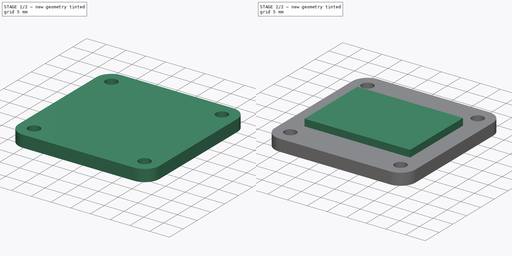
[diagram: build sequence overview — one tinted view per stage of 2, left to right]
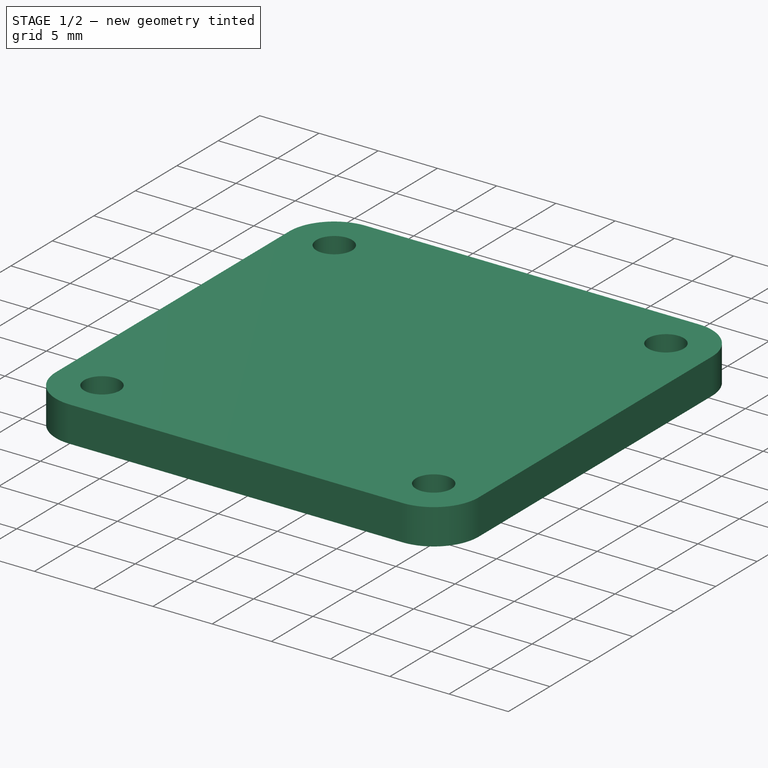
[diagram: stage 1 of 2 — iso view after this stage's code; geometry added in this stage tinted green]
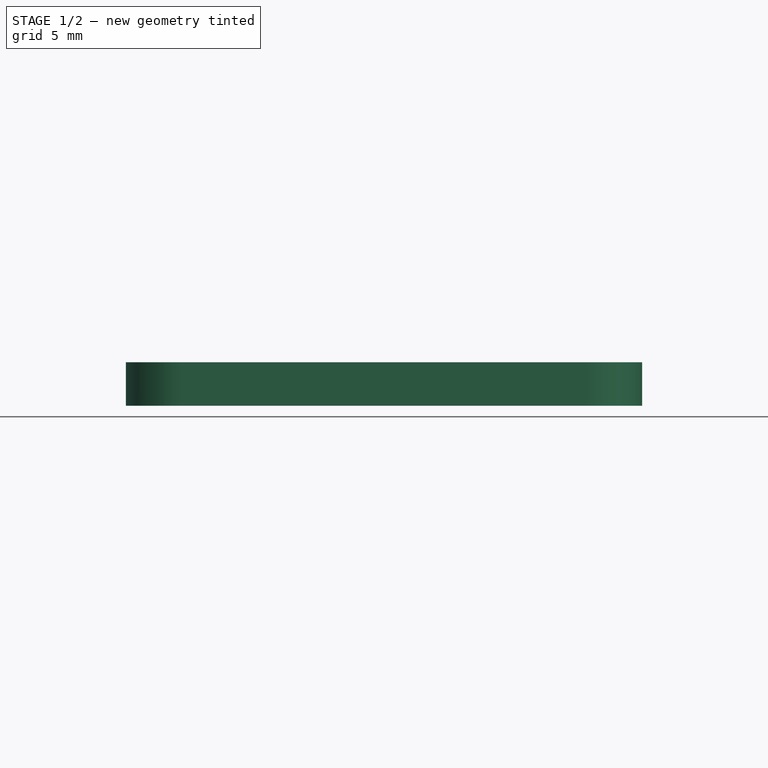
[diagram: stage 1 of 2 — front view after this stage's code; geometry added in this stage tinted green]
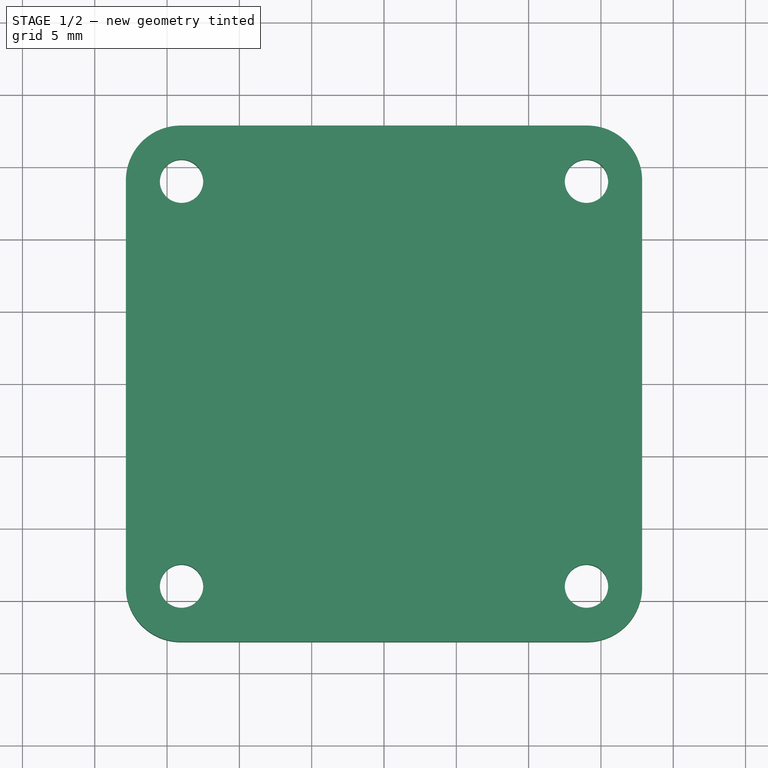
[diagram: stage 1 of 2 — top view after this stage's code; geometry added in this stage tinted green]
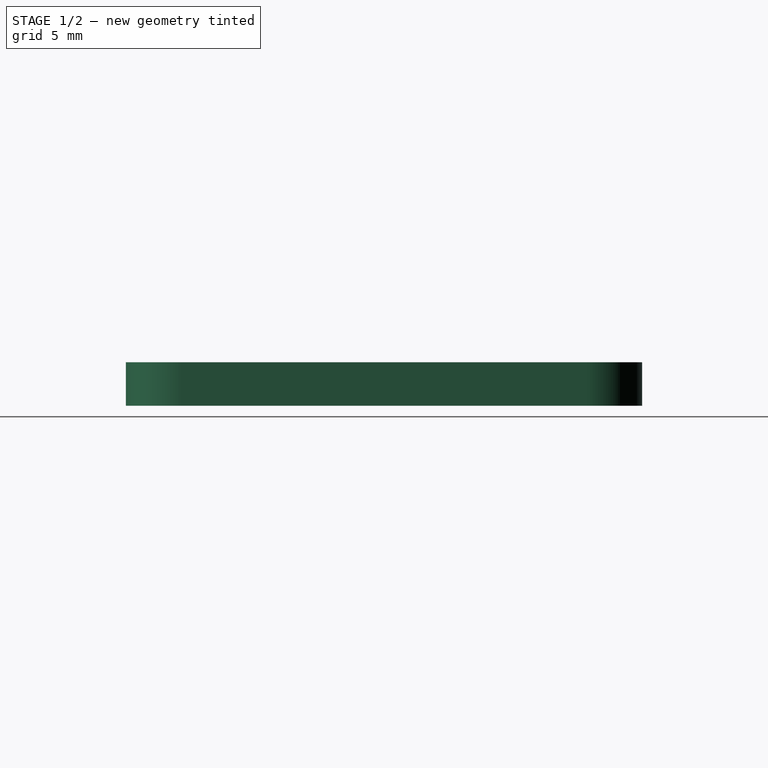
[diagram: stage 1 of 2 — right view after this stage's code; geometry added in this stage tinted green]
FCSTD DOCUMENT  (FreeCAD 0.16R5166 (Git))
Label: OLED
License: CreativeCommons Attribution-ShareAlike
LicenseURL: http://creativecommons.org/licenses/by-sa/4.0/
objects: Sketcher::SketchObject×2, PartDesign::Pad×2
note: 6 computed .brp shape members not serialized (recipe doc carries the construction recipe); baked Part::Feature solids carry a one-line shape summary decoded from their .brp

FEATURE [Sketcher::SketchObject] Sketch
  sketch-geometry (12):
    g0: LineSegment StartX=-14.05 StartY=17.85 StartZ=0 EndX=14.05 EndY=17.85 EndZ=0
    g1: LineSegment StartX=17.85 StartY=14.05 StartZ=0 EndX=17.85 EndY=-14.05 EndZ=0
    g2: LineSegment StartX=14.05 StartY=-17.85 StartZ=0 EndX=-14.05 EndY=-17.85 EndZ=0
    g3: LineSegment StartX=-17.85 StartY=-14.05 StartZ=0 EndX=-17.85 EndY=14.05 EndZ=0
    g4: Circle CenterX=-14 CenterY=14 CenterZ=0 NormalX=0 NormalY=0 NormalZ=1 Radius=1.5
    g5: Circle CenterX=-14 CenterY=-14 CenterZ=0 NormalX=0 NormalY=0 NormalZ=1 Radius=1.5
    g6: Circle CenterX=14 CenterY=-14 CenterZ=0 NormalX=0 NormalY=0 NormalZ=1 Radius=1.5
    g7: Circle CenterX=14 CenterY=14 CenterZ=0 NormalX=0 NormalY=0 NormalZ=1 Radius=1.5
    g8: ArcOfCircle CenterX=-14.05 CenterY=14.05 CenterZ=0 NormalX=0 NormalY=0 NormalZ=1 Radius=3.8 StartAngle=1.5708 EndAngle=3.14159
    g9: ArcOfCircle CenterX=14.05 CenterY=14.05 CenterZ=0 NormalX=0 NormalY=0 NormalZ=1 Radius=3.8 StartAngle=0 EndAngle=1.5708
    g10: ArcOfCircle CenterX=14.05 CenterY=-14.05 CenterZ=0 NormalX=0 NormalY=0 NormalZ=1 Radius=3.8 StartAngle=4.71239 EndAngle=6.28319
    g11: ArcOfCircle CenterX=-14.05 CenterY=-14.05 CenterZ=0 NormalX=0 NormalY=0 NormalZ=1 Radius=3.8 StartAngle=3.14159 EndAngle=4.71239
  constraints (29):
    c: Horizontal(g0)
    c: Horizontal(g2)
    c: Vertical(g1)
    c: Vertical(g3)
    c: Equal(g4,g7)
    c: Equal(g7,g5)
    c: Equal(g5,g6)
    c: Symmetric(g4,g7,g-2)
    c: Symmetric(g5,g7,g-1)
    c: Equal(g0,g1)
    c: Radius(g4) = 1.5
    c: Symmetric(g4,g6,g-1)
    c: Symmetric(g4,g5,g-1)
    c: DistanceX(g4,g7) = 28
    c: DistanceY(g4,g5) = -28
    c: Tangent(g3,g8) = 1.5708
    c: Tangent(g0,g8) = 1.5708
    c: Tangent(g0,g9) = 1.5708
    c: Tangent(g1,g9) = 1.5708
    c: Tangent(g1,g10) = 1.5708
    c: Tangent(g2,g10) = 1.5708
    c: Tangent(g2,g11) = 1.5708
    c: Tangent(g3,g11) = 1.5708
    c: Equal(g11,g8)
    c: Equal(g8,g9)
    c: Equal(g9,g10)
    c: Symmetric(g11,g9,g-1)
    c: DistanceX(g3,g1) = 35.7
    c: Radius(g8) = 3.8
FEATURE [PartDesign::Pad] Pad  label="oled_base"
  Length = 3
  Length2 = 100
  Midplane = true
  Sketch = -> Sketch
  Type = 0
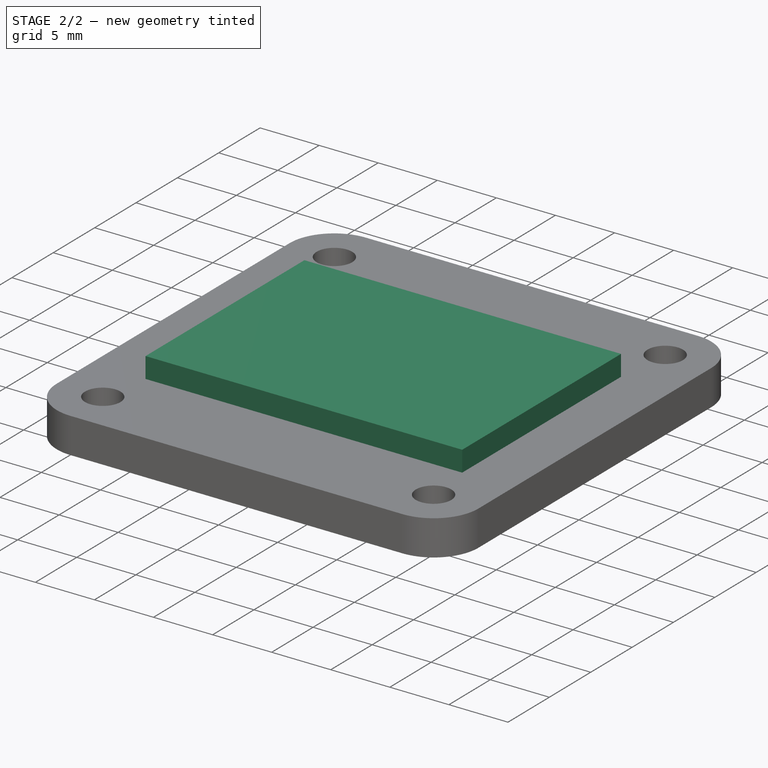
[diagram: stage 2 of 2 — iso view after this stage's code; geometry added in this stage tinted green]
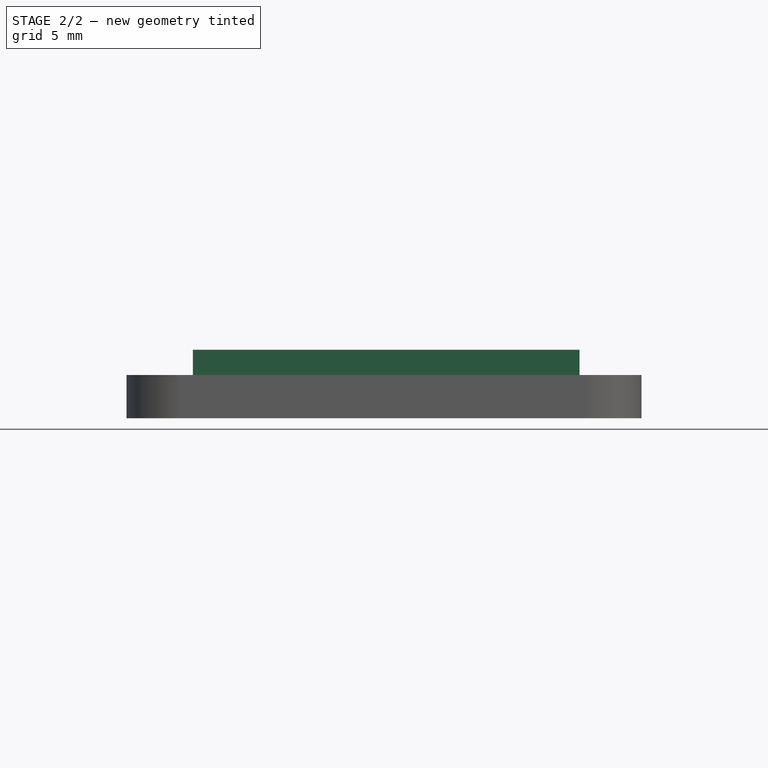
[diagram: stage 2 of 2 — front view after this stage's code; geometry added in this stage tinted green]
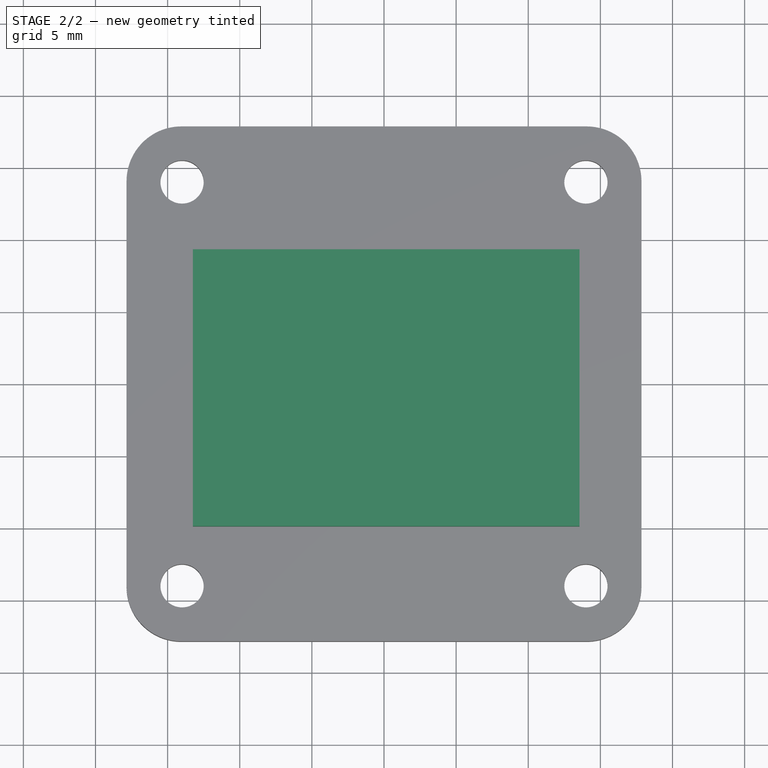
[diagram: stage 2 of 2 — top view after this stage's code; geometry added in this stage tinted green]
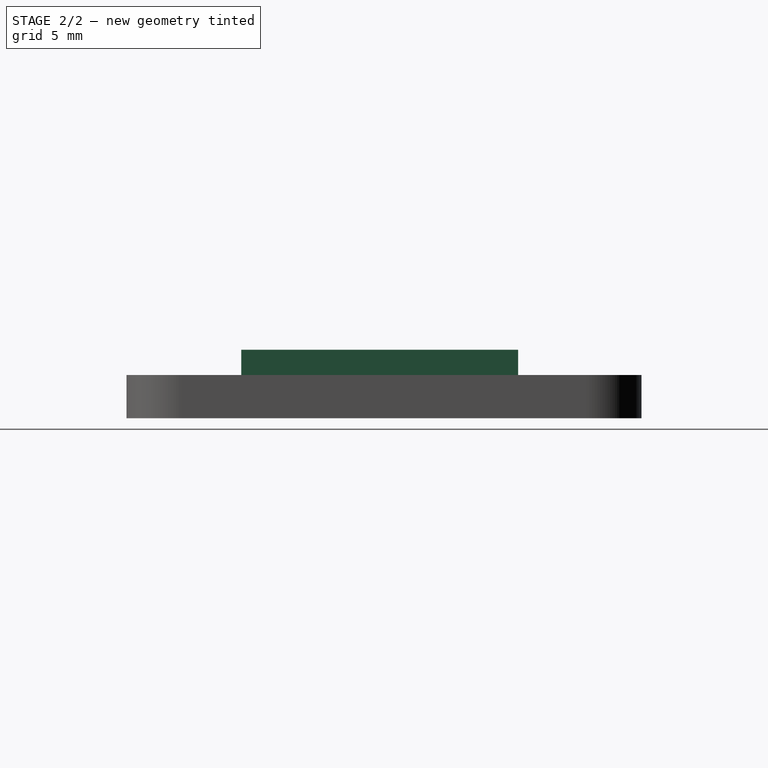
[diagram: stage 2 of 2 — right view after this stage's code; geometry added in this stage tinted green]
FEATURE [Sketcher::SketchObject] Sketch001
  ExternalGeometry = -> [Pad]
  Placement = pos=(0,0,1.5) rot=(0,0,1;0rad)
  Support = -> Pad [Face14]
  sketch-geometry (4):
    g0: LineSegment StartX=-13.25 StartY=9.3 StartZ=0 EndX=13.55 EndY=9.3 EndZ=0
    g1: LineSegment StartX=13.55 StartY=9.3 StartZ=0 EndX=13.55 EndY=-9.9 EndZ=0
    g2: LineSegment StartX=13.55 StartY=-9.9 StartZ=0 EndX=-13.25 EndY=-9.9 EndZ=0
    g3: LineSegment StartX=-13.25 StartY=-9.9 StartZ=0 EndX=-13.25 EndY=9.3 EndZ=0
  constraints (12):
    c: Coincident(g0,g1)
    c: Coincident(g1,g2)
    c: Coincident(g2,g3)
    c: Coincident(g3,g0)
    c: Horizontal(g0)
    c: Horizontal(g2)
    c: Vertical(g1)
    c: Vertical(g3)
    c: DistanceX(g0) = 26.8
    c: DistanceY(g1) = -19.2
    c: DistanceX(g0,g-4) = 4.3
    c: DistanceY(g0,g-3) = 8.55
FEATURE [PartDesign::Pad] Pad001  label="oled_2864"
  Length = 1.75
  Length2 = 100
  Sketch = -> Sketch001
  Type = 0
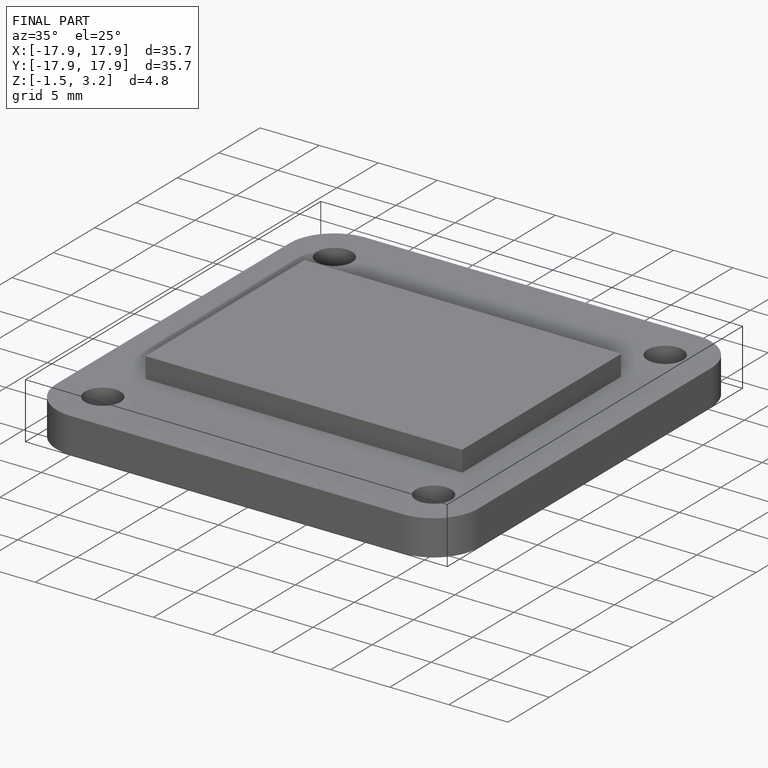
[diagram: finished part — iso view with bounding-box wireframe]
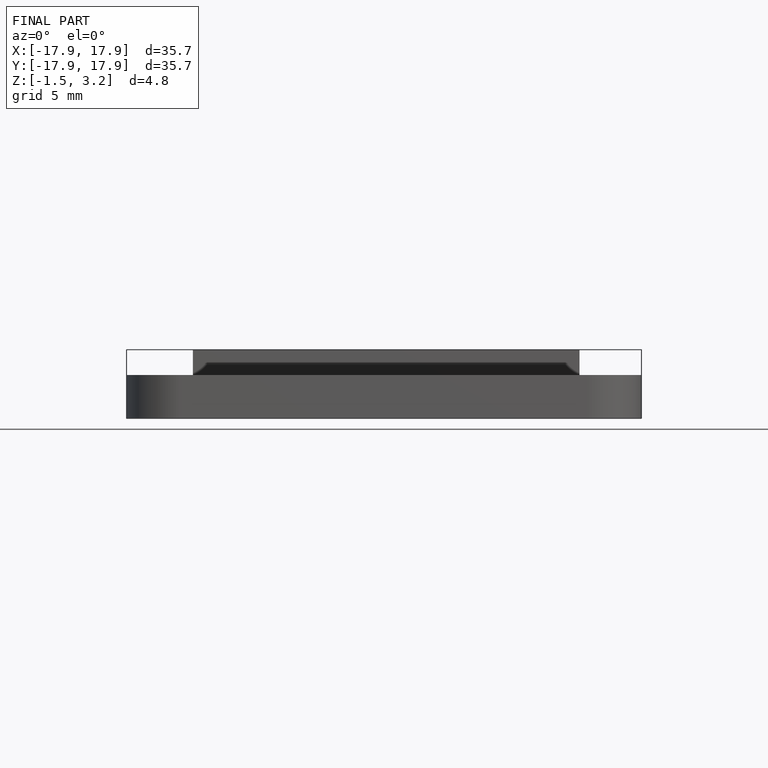
[diagram: finished part — front view with bounding-box wireframe]
